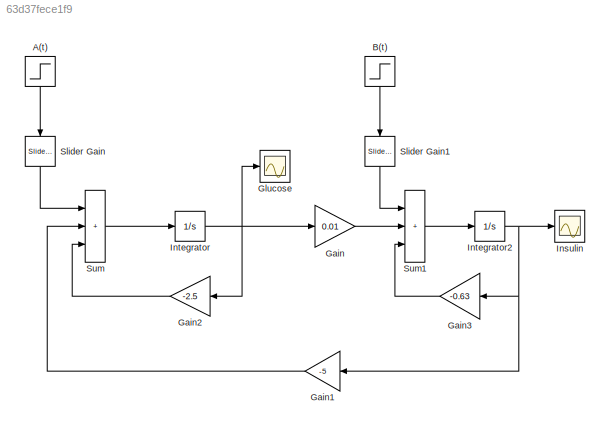
MODEL slx_63d37fece1f9
KIND model
CONFIG AbsTol = auto
CONFIG EnableMultiTasking = on
CONFIG FixedStep = auto
CONFIG MaxStep = 0.1
CONFIG MinStep = auto
CONFIG RelTol = 1e-3
CONFIG SampleTimeConstraint = Unconstrained
CONFIG SolverName = ode23
CONFIG StartTime = 0.0
CONFIG StopTime = 10
BLOCK [Step] A(t)
  NameLocation = right
  SampleTime = 0
BLOCK [Step] B(t)
  NameLocation = right
  SampleTime = 0
  Time = 0
BLOCK [Gain] Gain
  Gain = 0.01
BLOCK [Gain] Gain1
  Gain = -5
BLOCK [Gain] Gain2
  Gain = -2.5
BLOCK [Gain] Gain3
  Gain = -0.63
BLOCK [Scope] Glucose
  Floating = off
  NumInputPorts = 1
  ScopeSpecificationString = Simulink.scopes.TimeScopeBlockCfg('CurrentConfiguration', extmgr.ConfigurationSet(extmgr.Configuration('Core','General UI',true),extmgr.Configuration('Core','Source UI',true),extmgr.Configuration('Sources','WiredSimulink',true,'DataLoggingVariableName','ScopeData1','DataLoggingLimitDataPoints',true),extmgr.Configuration('Visuals','Time Domain',true,'SerializedDisplays',{struct('MinYLimReal','-0.13...<+1464ch>
BLOCK [Scope] Insulin
  Floating = off
  NumInputPorts = 1
  ScopeSpecificationString = Simulink.scopes.TimeScopeBlockCfg('CurrentConfiguration', extmgr.ConfigurationSet(extmgr.Configuration('Core','General UI',true),extmgr.Configuration('Core','Source UI',true),extmgr.Configuration('Sources','WiredSimulink',true,'DataLoggingVariableName','ScopeData1'),extmgr.Configuration('Visuals','Time Domain',true,'SerializedDisplays',{struct('MinYLimReal','-0.01997','MaxYLimReal','0.17973','YLab...<+1399ch>
BLOCK [Integrator] Integrator
BLOCK [Integrator] Integrator2
BLOCK [Reference] Slider Gain  REF=simulink/Math
Operations/Slider
Gain
  NameLocation = left
  SourceBlock = simulink/Math\nOperations/Slider\nGain
  SourceType = Slider Gain
BLOCK [Reference] Slider Gain1  REF=simulink/Math
Operations/Slider
Gain
  NameLocation = left
  SourceBlock = simulink/Math\nOperations/Slider\nGain
  SourceType = Slider Gain
BLOCK [Sum] Sum
  IconShape = rectangular
  Inputs = +++
BLOCK [Sum] Sum1
  IconShape = rectangular
  Inputs = +++
LINE A(t):1 -> Slider Gain:1
LINE B(t):1 -> Slider Gain1:1
LINE Gain1:1 -> Sum:2
LINE Gain2:1 -> Sum:3
LINE Gain3:1 -> Sum1:3
LINE Gain:1 -> Sum1:2
NET Integrator2:1 -> Gain1:1, Gain3:1, Insulin:1
NET Integrator:1 -> Gain2:1, Gain:1, Glucose:1
LINE Slider Gain1:1 -> Sum1:1
LINE Slider Gain:1 -> Sum:1
LINE Sum1:1 -> Integrator2:1
LINE Sum:1 -> Integrator:1
note: NET lines group one-source signal fan-out (src -> all destinations, sorted); 1:1 wires keep LINE
